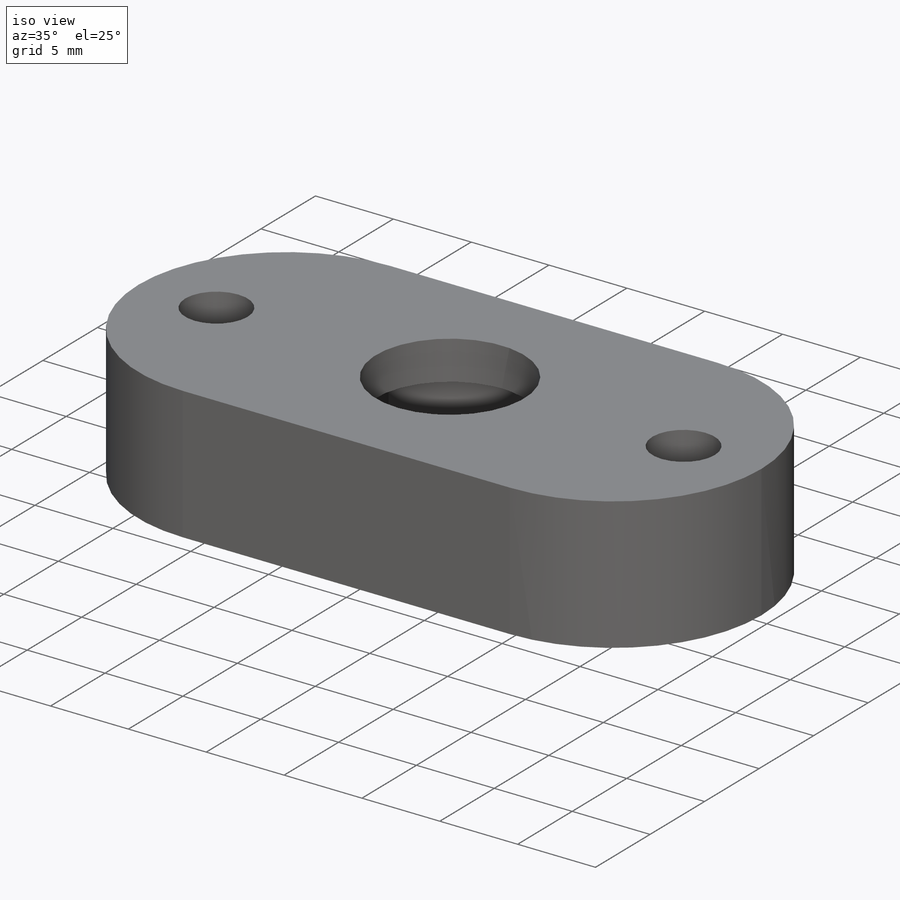
[diagram: iso view]
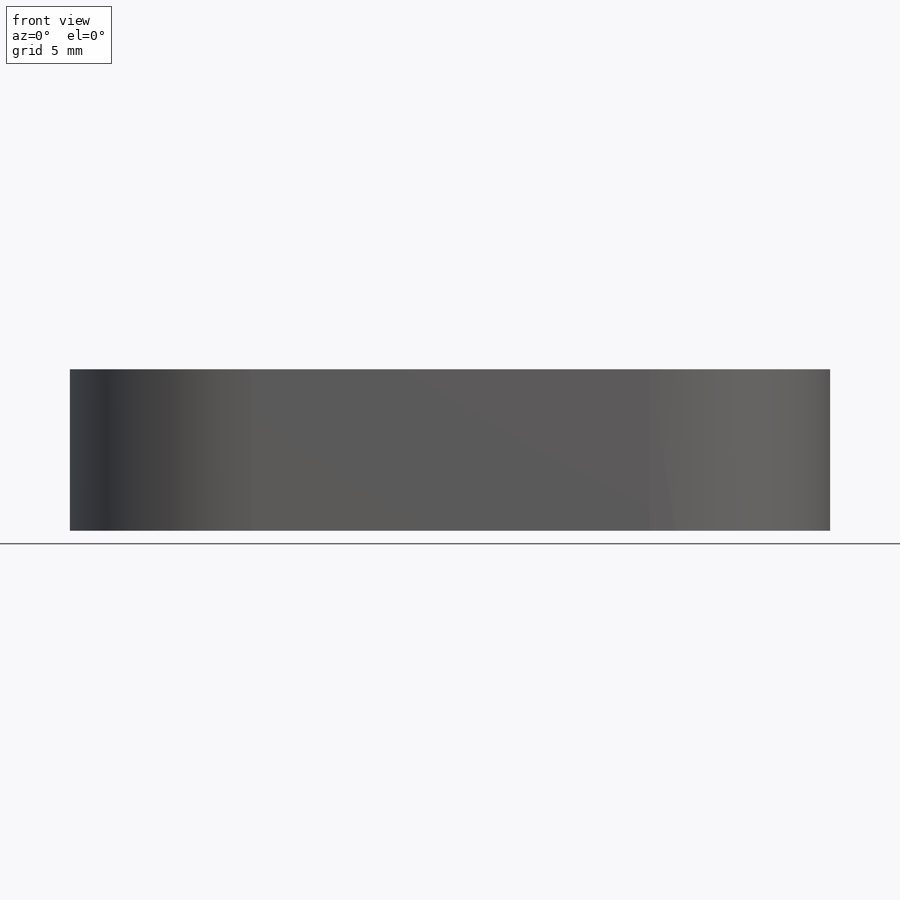
[diagram: front view]
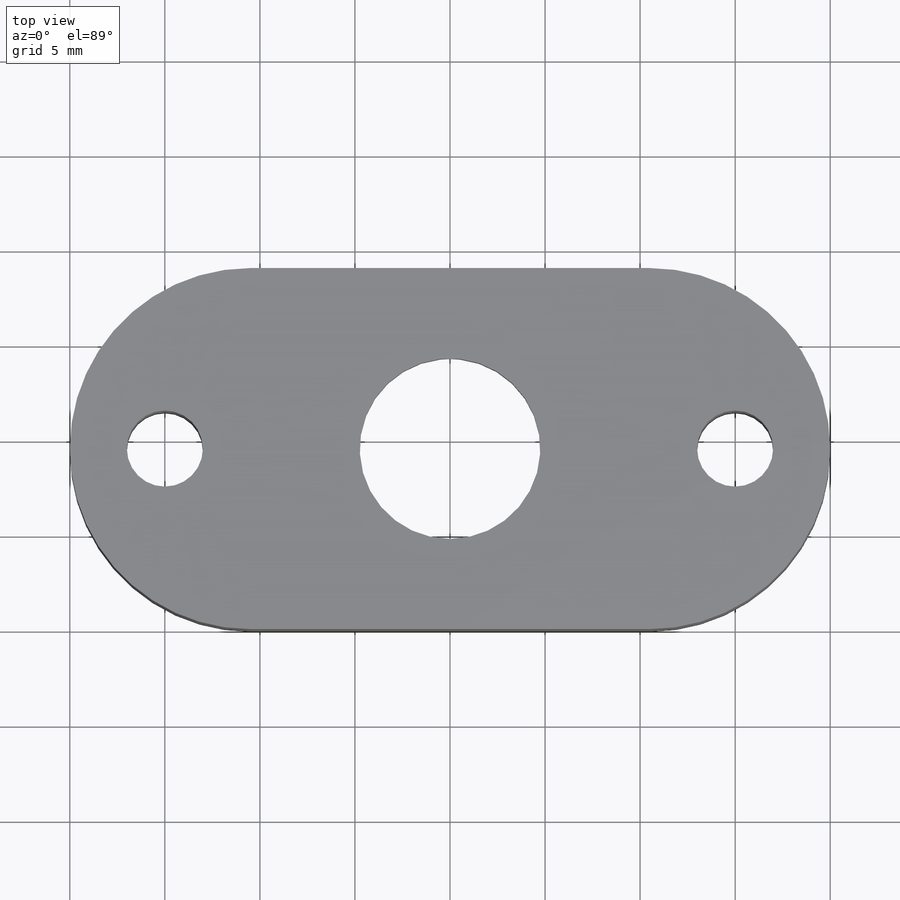
[diagram: top view]
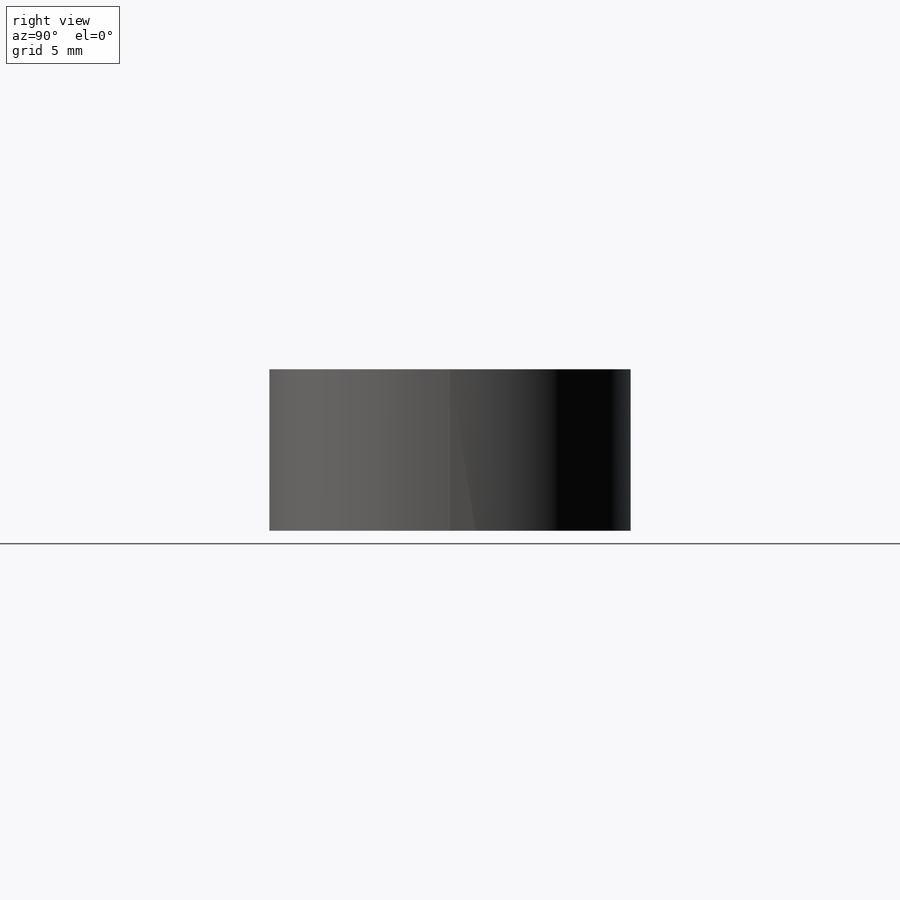
[diagram: right view]
SOLIDWORKS PART (.sldprt)
format: sldprt  version: not decoded by parser v0  size: 216,576 bytes
history: native  units: mm
features: sketch x3, cut_extrude x2, material x1, extrude x1, fillet x1 (+12 scaffold rows collapsed)
feature tree (20):
  scaffold x12  (default folders/planes/origin — collapsed)
  material  "ABS PC"
  sketch  "Sketch1"  dims[D1=19.0mm D2=40.0mm]
  extrude  "Boss-Extrude1"  Depth=8.5mm
  sketch  "Sketch2"  dims[c1.D1=9.5mm c1.D4=4.0mm c1.D5=9.0mm c1.D6=4.0mm c1.D7=9.0mm c1.D8=4.0mm c1.D2=20.0mm c1.D3=9.5mm c2.D5=15.0mm c2.D6=8.5mm c2.D7=8.5mm c2.D8=15.0mm]
  cut_extrude  "Cut-Extrude1"  [1 undecoded]
  sketch  "Sketch3"  dims[D1=15.3mm]
  cut_extrude  "Cut-Extrude2"  Depth=6mm
  fillet  "Fillet1"  Radius=9.5mm
decode coverage: 6 of 7 modeling features carry decoded parameters
note: 1 parameter value undecoded
note: suppression state not decoded; provenance and decode notes live in map.json
